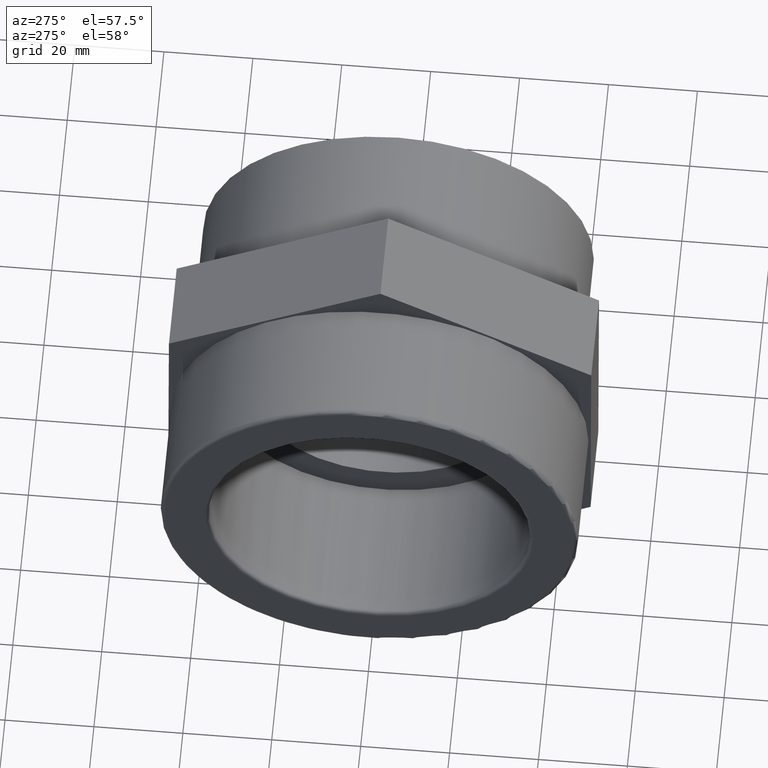
[diagram: clean part render]
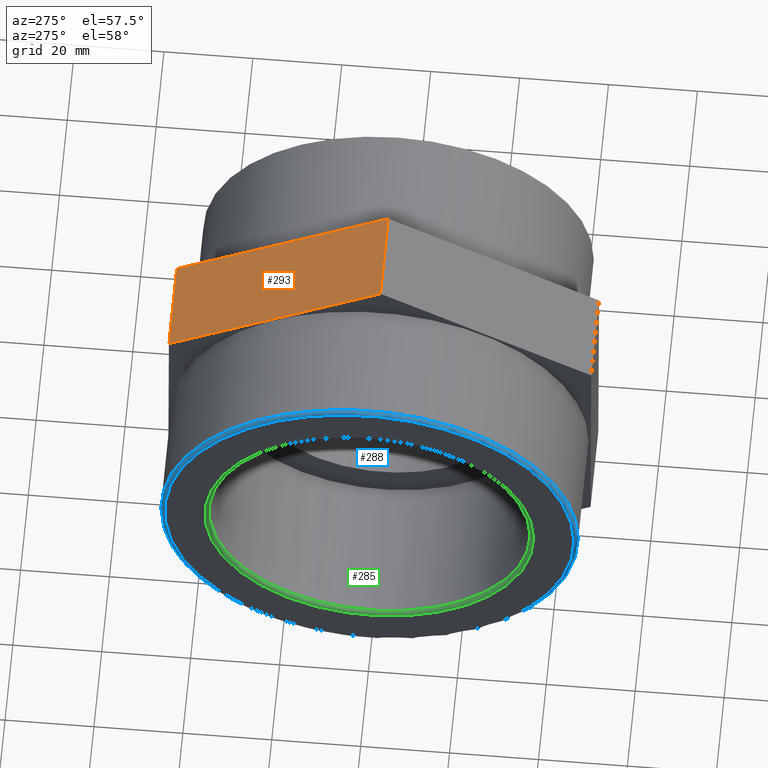
[diagram: same view with three faces highlighted in distinct colors, each labeled with its STEP entity id]
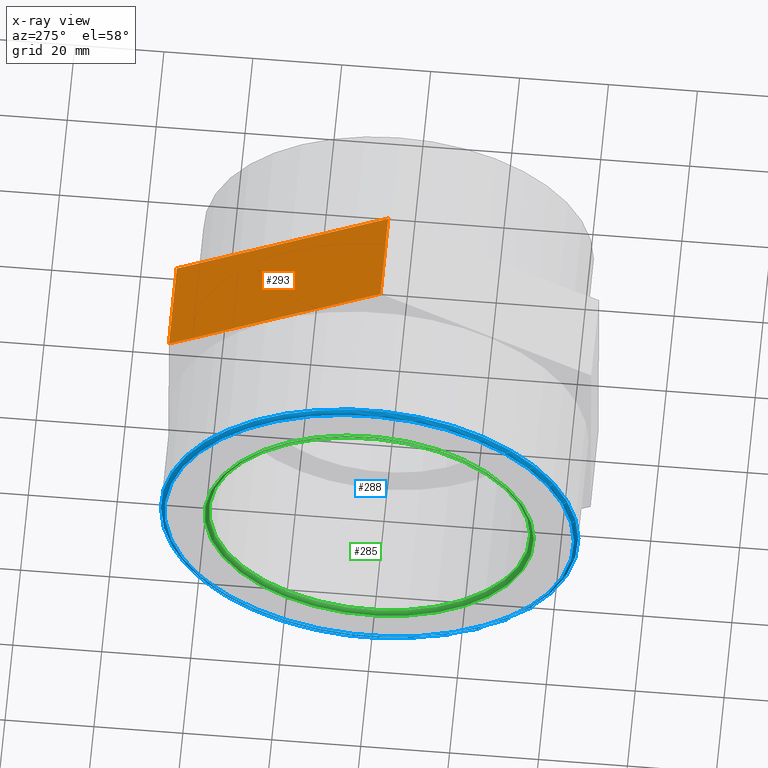
[diagram: x-ray of the same camera — body ghosted, the three highlighted faces saturated]
A machine part, auxiliary view with three faces highlighted in distinct colors.
The next image is the same camera in x-ray (body ghosted, the three faces saturated) — at least one of them is partly hidden behind the body in this view.
Their STEP definitions:

[orange] entity #293 — the highlighted planar face has unit normal (-0, 0.4974, 0.8675).
#25=LINE('',#487,#43);
#26=LINE('',#489,#44);
#27=LINE('',#491,#45);
#28=LINE('',#492,#46);
#43=VECTOR('',#402,54.8482755730145);
#44=VECTOR('',#403,20.);
#45=VECTOR('',#404,54.8482755730145);
#46=VECTOR('',#405,20.);
#61=PLANE('',#328);
#96=FACE_OUTER_BOUND('',#127,.T.);
#127=EDGE_LOOP('',(#244,#245,#246,#247));
#174=VERTEX_POINT('',#485);
#175=VERTEX_POINT('',#486);
#176=VERTEX_POINT('',#488);
#177=VERTEX_POINT('',#490);
#202=EDGE_CURVE('',#174,#175,#25,.T.);
#203=EDGE_CURVE('',#176,#175,#26,.T.);
#204=EDGE_CURVE('',#176,#177,#27,.T.);
#205=EDGE_CURVE('',#177,#174,#28,.T.);
#244=ORIENTED_EDGE('',*,*,#202,.T.);
#245=ORIENTED_EDGE('',*,*,#203,.F.);
#246=ORIENTED_EDGE('',*,*,#204,.T.);
#247=ORIENTED_EDGE('',*,*,#205,.T.);
#293=ADVANCED_FACE('',(#96),#61,.T.);
#328=AXIS2_PLACEMENT_3D('',#484,#400,#401);
#400=DIRECTION('center_axis',(-1.47269329551769E-16,0.49743157326934,0.867503216083255));
#401=DIRECTION('ref_axis',(-1.77635683940025E-16,0.867503216083254,-0.49743157326934));
#402=DIRECTION('',(1.59357755523959E-16,-0.867503216083254,0.49743157326934));
#403=DIRECTION('',(-1.,-2.96059473233373E-16,0.));
#404=DIRECTION('',(-1.59357755523959E-16,0.867503216083254,-0.49743157326934));
#405=DIRECTION('',(-1.,-2.96059473233373E-16,0.));
#484=CARTESIAN_POINT('Origin',(9.00000000000001,-0.1625279978117,54.8480347686521));
#485=CARTESIAN_POINT('',(-11.,47.418527458399,27.5647707592572));
#486=CARTESIAN_POINT('',(-11.,-0.162527997811706,54.8480347686521));
#487=CARTESIAN_POINT('',(-11.,11.732735866241,48.0272187663033));
#488=CARTESIAN_POINT('',(9.00000000000001,-0.1625279978117,54.8480347686521));
#489=CARTESIAN_POINT('',(9.00000000000001,-0.1625279978117,54.8480347686521));
#490=CARTESIAN_POINT('',(9.,47.418527458399,27.5647707592572));
#491=CARTESIAN_POINT('',(9.00000000000001,-0.1625279978117,54.8480347686521));
#492=CARTESIAN_POINT('',(9.,47.418527458399,27.5647707592572));

[blue] entity #288 — the highlighted toroidal blend (fillet) surface has major radius 46.0681 mm and minor (blend) radius 0.8788 mm.
#76=FACE_BOUND('',#121,.T.);
#91=FACE_OUTER_BOUND('',#120,.T.);
#120=EDGE_LOOP('',(#228));
#121=EDGE_LOOP('',(#229));
#148=CIRCLE('',#318,46.06806);
#150=CIRCLE('',#322,46.9469);
#162=VERTEX_POINT('',#452);
#164=VERTEX_POINT('',#458);
#188=EDGE_CURVE('',#162,#162,#148,.T.);
#190=EDGE_CURVE('',#164,#164,#150,.T.);
#228=ORIENTED_EDGE('',*,*,#190,.T.);
#229=ORIENTED_EDGE('',*,*,#188,.T.);
#279=TOROIDAL_SURFACE('',#321,46.06806,0.87884);
#288=ADVANCED_FACE('',(#91,#76),#279,.T.);
#318=AXIS2_PLACEMENT_3D('',#453,#370,#371);
#321=AXIS2_PLACEMENT_3D('',#457,#376,#377);
#322=AXIS2_PLACEMENT_3D('',#459,#378,#379);
#370=DIRECTION('center_axis',(1.,1.83697019872103E-16,0.));
#371=DIRECTION('ref_axis',(-1.83697019872103E-16,1.,6.12323399573677E-17));
#376=DIRECTION('center_axis',(-1.,-1.83697019872103E-16,0.));
#377=DIRECTION('ref_axis',(0.,0.,1.));
#378=DIRECTION('center_axis',(-1.,-1.83697019872103E-16,0.));
#379=DIRECTION('ref_axis',(-1.83275752836608E-16,1.,6.12323399573677E-17));
#452=CARTESIAN_POINT('',(-38.,-46.06806,-8.46256533328923E-15));
#453=CARTESIAN_POINT('Origin',(-38.,7.70371977754894E-31,0.));
#457=CARTESIAN_POINT('Origin',(-37.12116,1.61440288944399E-16,0.));
#458=CARTESIAN_POINT('',(-37.12116,-46.9469,2.87466854074454E-15));
#459=CARTESIAN_POINT('Origin',(-37.12116,1.61440288944399E-16,0.));

[green] entity #285 — the highlighted toroidal blend (fillet) surface has major radius 36.9918 mm and minor (blend) radius 0.8788 mm.
#73=FACE_BOUND('',#115,.T.);
#88=FACE_OUTER_BOUND('',#114,.T.);
#114=EDGE_LOOP('',(#222));
#115=EDGE_LOOP('',(#223));
#146=CIRCLE('',#315,36.99184);
#147=CIRCLE('',#316,36.113);
#160=VERTEX_POINT('',#447);
#161=VERTEX_POINT('',#449);
#186=EDGE_CURVE('',#160,#160,#146,.T.);
#187=EDGE_CURVE('',#161,#161,#147,.T.);
#222=ORIENTED_EDGE('',*,*,#186,.T.);
#223=ORIENTED_EDGE('',*,*,#187,.T.);
#278=TOROIDAL_SURFACE('',#314,36.99184,0.87884);
#285=ADVANCED_FACE('',(#88,#73),#278,.T.);
#314=AXIS2_PLACEMENT_3D('',#446,#362,#363);
#315=AXIS2_PLACEMENT_3D('',#448,#364,#365);
#316=AXIS2_PLACEMENT_3D('',#450,#366,#367);
#362=DIRECTION('center_axis',(-1.,-1.83697019872103E-16,0.));
#363=DIRECTION('ref_axis',(0.,0.,1.));
#364=DIRECTION('center_axis',(-1.,-1.83697019872103E-16,0.));
#365=DIRECTION('ref_axis',(-1.83697019872103E-16,1.,6.12323399573677E-17));
#366=DIRECTION('center_axis',(1.,1.83697019872103E-16,0.));
#367=DIRECTION('ref_axis',(-1.84458177048457E-16,1.,6.12323399573676E-17));
#446=CARTESIAN_POINT('Origin',(-37.12116,1.61440288944399E-16,0.));
#447=CARTESIAN_POINT('',(-38.,-36.99184,2.26509692252855E-15));
#448=CARTESIAN_POINT('Origin',(-38.,2.77333911991762E-31,0.));
#449=CARTESIAN_POINT('',(-37.12116,-36.113,-6.63385047864126E-15));
#450=CARTESIAN_POINT('Origin',(-37.12116,1.61440288944399E-16,0.));